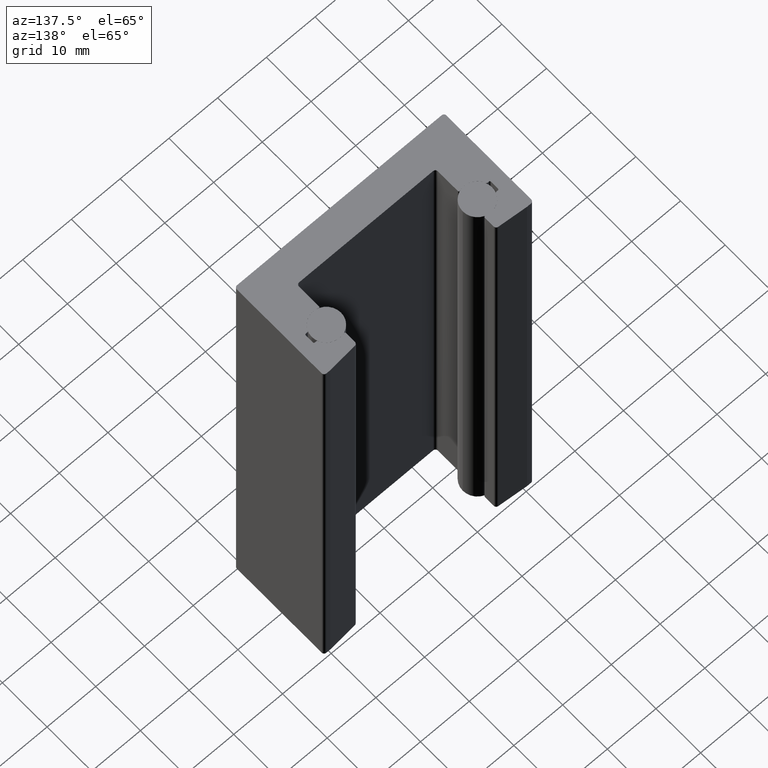
[diagram: clean part render]
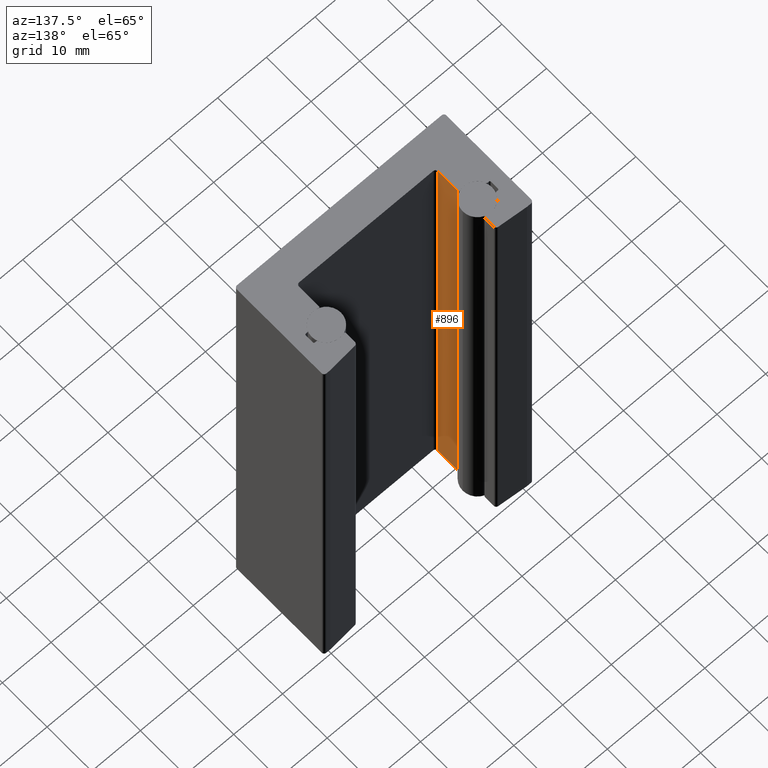
[diagram: same view with one face highlighted and labeled with its STEP entity id]
A machine part, auxiliary view. The second image highlights one B-rep face of the part: STEP entity #896.
In plain terms, the highlighted planar face has unit normal (1, 0, 0).
Its self-contained STEP definition (entity closure, byte-faithful):
#35=PLANE('',#1040);
#60=FACE_OUTER_BOUND('',#109,.T.);
#109=EDGE_LOOP('',(#660,#661,#662,#663));
#166=LINE('',#1477,#247);
#179=LINE('',#1528,#260);
#180=LINE('',#1531,#261);
#181=LINE('',#1532,#262);
#247=VECTOR('',#1168,10.);
#260=VECTOR('',#1215,10.);
#261=VECTOR('',#1218,10.);
#262=VECTOR('',#1219,10.);
#396=VERTEX_POINT('',#1474);
#397=VERTEX_POINT('',#1476);
#418=VERTEX_POINT('',#1526);
#419=VERTEX_POINT('',#1530);
#488=EDGE_CURVE('',#397,#396,#166,.T.);
#514=EDGE_CURVE('',#396,#418,#179,.T.);
#515=EDGE_CURVE('',#418,#419,#180,.T.);
#516=EDGE_CURVE('',#419,#397,#181,.T.);
#660=ORIENTED_EDGE('',*,*,#514,.T.);
#661=ORIENTED_EDGE('',*,*,#515,.T.);
#662=ORIENTED_EDGE('',*,*,#516,.T.);
#663=ORIENTED_EDGE('',*,*,#488,.T.);
#896=ADVANCED_FACE('',(#60),#35,.T.);
#1040=AXIS2_PLACEMENT_3D('',#1529,#1216,#1217);
#1168=DIRECTION('',(7.30467679284014E-16,-1.,0.));
#1215=DIRECTION('',(0.,0.,-1.));
#1216=DIRECTION('center_axis',(1.,7.30467679284014E-16,0.));
#1217=DIRECTION('ref_axis',(7.30467679284014E-16,-1.,0.));
#1218=DIRECTION('',(-7.30467679284014E-16,1.,0.));
#1219=DIRECTION('',(0.,0.,1.));
#1474=CARTESIAN_POINT('',(-14.25,-3.5,-290.));
#1476=CARTESIAN_POINT('',(-14.25,0.977170199961623,-290.));
#1477=CARTESIAN_POINT('',(-14.25,4.73980129876094,-290.));
#1526=CARTESIAN_POINT('',(-14.25,-3.5,-390.));
#1528=CARTESIAN_POINT('',(-14.25,-3.5,390.));
#1529=CARTESIAN_POINT('Origin',(-14.25,9.47960259752188,390.));
#1530=CARTESIAN_POINT('',(-14.25,0.977170199961623,-390.));
#1531=CARTESIAN_POINT('',(-14.25,4.73980129876094,-390.));
#1532=CARTESIAN_POINT('',(-14.25,0.977170199961623,390.));